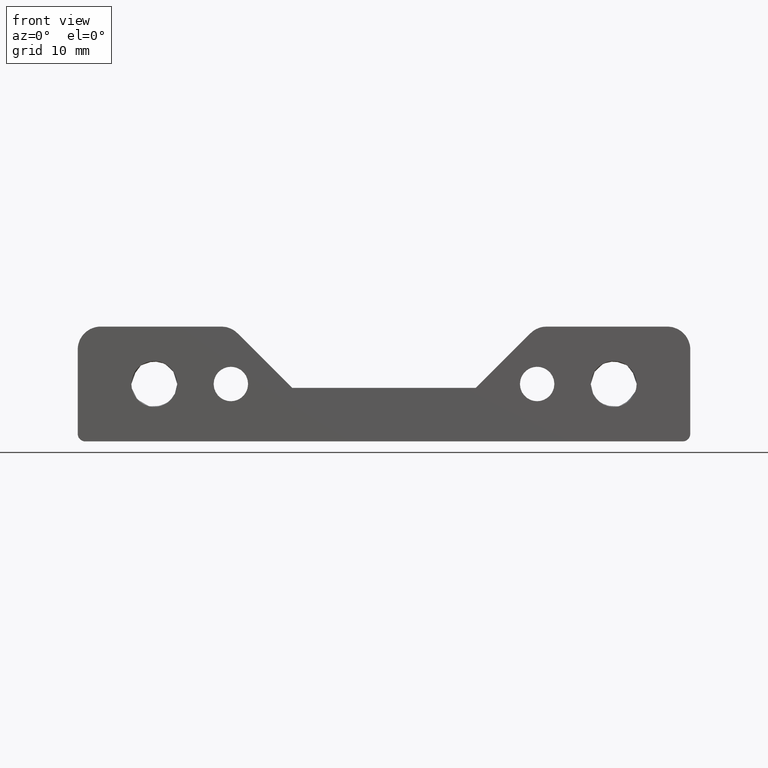
[diagram: clean part render]
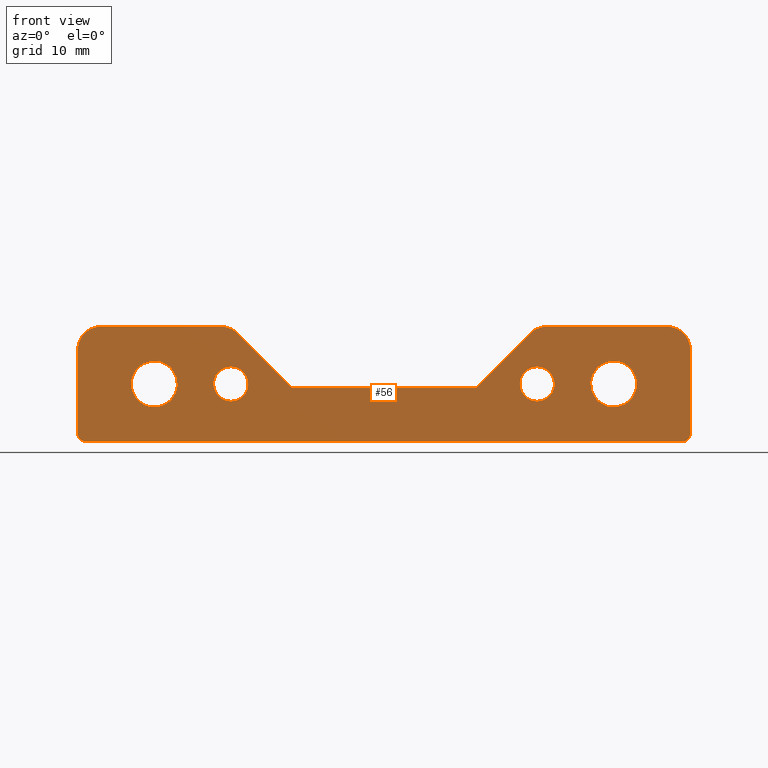
[diagram: same view with one face highlighted and labeled with its STEP entity id]
A machine part, front view. The second image highlights one B-rep face of the part: STEP entity #56.
In plain terms, the highlighted planar face has unit normal (0, -1, 0).
Its self-contained STEP definition (entity closure, byte-faithful):
#56=ADVANCED_FACE('',(#138,#89,#90,#91,#92),#1176,.T.);
#89=FACE_BOUND('',#213,.T.);
#90=FACE_BOUND('',#214,.T.);
#91=FACE_BOUND('',#215,.T.);
#92=FACE_BOUND('',#216,.T.);
#138=FACE_OUTER_BOUND('',#212,.T.);
#212=EDGE_LOOP('',(#465,#466,#467,#468,#469,#470,#471,#472,#473,#474,#475,
#476,#477,#478));
#213=EDGE_LOOP('',(#479,#480));
#214=EDGE_LOOP('',(#481,#482));
#215=EDGE_LOOP('',(#483,#484));
#216=EDGE_LOOP('',(#485,#486));
#465=ORIENTED_EDGE('',*,*,#728,.F.);
#466=ORIENTED_EDGE('',*,*,#700,.T.);
#467=ORIENTED_EDGE('',*,*,#701,.F.);
#468=ORIENTED_EDGE('',*,*,#687,.F.);
#469=ORIENTED_EDGE('',*,*,#688,.F.);
#470=ORIENTED_EDGE('',*,*,#660,.F.);
#471=ORIENTED_EDGE('',*,*,#649,.T.);
#472=ORIENTED_EDGE('',*,*,#691,.F.);
#473=ORIENTED_EDGE('',*,*,#696,.F.);
#474=ORIENTED_EDGE('',*,*,#704,.F.);
#475=ORIENTED_EDGE('',*,*,#706,.F.);
#476=ORIENTED_EDGE('',*,*,#622,.F.);
#477=ORIENTED_EDGE('',*,*,#726,.F.);
#478=ORIENTED_EDGE('',*,*,#727,.T.);
#479=ORIENTED_EDGE('',*,*,#789,.F.);
#480=ORIENTED_EDGE('',*,*,#756,.F.);
#481=ORIENTED_EDGE('',*,*,#786,.F.);
#482=ORIENTED_EDGE('',*,*,#754,.F.);
#483=ORIENTED_EDGE('',*,*,#777,.F.);
#484=ORIENTED_EDGE('',*,*,#746,.F.);
#485=ORIENTED_EDGE('',*,*,#772,.F.);
#486=ORIENTED_EDGE('',*,*,#743,.F.);
#622=EDGE_CURVE('',#999,#1000,#915,.T.);
#649=EDGE_CURVE('',#1045,#1044,#932,.T.);
#660=EDGE_CURVE('',#1045,#1052,#942,.T.);
#687=EDGE_CURVE('',#1068,#1065,#957,.T.);
#688=EDGE_CURVE('',#1052,#1068,#828,.T.);
#691=EDGE_CURVE('',#1069,#1044,#959,.T.);
#696=EDGE_CURVE('',#1070,#1069,#833,.T.);
#700=EDGE_CURVE('',#1071,#1074,#964,.T.);
#701=EDGE_CURVE('',#1065,#1074,#834,.T.);
#704=EDGE_CURVE('',#1076,#1070,#966,.T.);
#706=EDGE_CURVE('',#1000,#1076,#837,.T.);
#726=EDGE_CURVE('',#1086,#999,#847,.T.);
#727=EDGE_CURVE('',#1086,#1087,#977,.T.);
#728=EDGE_CURVE('',#1071,#1087,#848,.T.);
#743=EDGE_CURVE('',#1027,#1093,#859,.T.);
#746=EDGE_CURVE('',#1032,#1097,#861,.T.);
#754=EDGE_CURVE('',#1040,#1103,#867,.T.);
#756=EDGE_CURVE('',#1041,#1105,#869,.T.);
#772=EDGE_CURVE('',#1093,#1027,#883,.T.);
#777=EDGE_CURVE('',#1097,#1032,#886,.T.);
#786=EDGE_CURVE('',#1103,#1040,#895,.T.);
#789=EDGE_CURVE('',#1105,#1041,#898,.T.);
#828=(
BOUNDED_CURVE()
B_SPLINE_CURVE(2,(#1924,#1925,#1926),.UNSPECIFIED.,.F.,.F.)
B_SPLINE_CURVE_WITH_KNOTS((3,3),(-0.392699081698727,0.392699081698723),
 .UNSPECIFIED.)
CURVE()
GEOMETRIC_REPRESENTATION_ITEM()
RATIONAL_B_SPLINE_CURVE((1.,0.923879532511287,1.))
REPRESENTATION_ITEM('')
);
#833=(
BOUNDED_CURVE()
B_SPLINE_CURVE(2,(#1944,#1945,#1946),.UNSPECIFIED.,.F.,.F.)
B_SPLINE_CURVE_WITH_KNOTS((3,3),(-0.392699081698724,0.392699081698725),
 .UNSPECIFIED.)
CURVE()
GEOMETRIC_REPRESENTATION_ITEM()
RATIONAL_B_SPLINE_CURVE((1.,0.923879532511287,1.))
REPRESENTATION_ITEM('')
);
#834=(
BOUNDED_CURVE()
B_SPLINE_CURVE(2,(#1955,#1956,#1957),.UNSPECIFIED.,.F.,.F.)
B_SPLINE_CURVE_WITH_KNOTS((3,3),(-0.785398163397446,0.785398163397451),
 .UNSPECIFIED.)
CURVE()
GEOMETRIC_REPRESENTATION_ITEM()
RATIONAL_B_SPLINE_CURVE((1.,0.707106781186548,1.))
REPRESENTATION_ITEM('')
);
#837=(
BOUNDED_CURVE()
B_SPLINE_CURVE(2,(#1968,#1969,#1970),.UNSPECIFIED.,.F.,.F.)
B_SPLINE_CURVE_WITH_KNOTS((3,3),(-0.785398163397449,0.785398163397448),
 .UNSPECIFIED.)
CURVE()
GEOMETRIC_REPRESENTATION_ITEM()
RATIONAL_B_SPLINE_CURVE((1.,0.707106781186548,1.))
REPRESENTATION_ITEM('')
);
#847=(
BOUNDED_CURVE()
B_SPLINE_CURVE(2,(#2016,#2017,#2018),.UNSPECIFIED.,.F.,.F.)
B_SPLINE_CURVE_WITH_KNOTS((3,3),(-0.785398163397448,0.785398163397449),
 .UNSPECIFIED.)
CURVE()
GEOMETRIC_REPRESENTATION_ITEM()
RATIONAL_B_SPLINE_CURVE((1.,0.707106781186548,1.))
REPRESENTATION_ITEM('')
);
#848=(
BOUNDED_CURVE()
B_SPLINE_CURVE(2,(#2021,#2022,#2023),.UNSPECIFIED.,.F.,.F.)
B_SPLINE_CURVE_WITH_KNOTS((3,3),(-0.78539816339745,0.785398163397447),
 .UNSPECIFIED.)
CURVE()
GEOMETRIC_REPRESENTATION_ITEM()
RATIONAL_B_SPLINE_CURVE((1.,0.707106781186548,1.))
REPRESENTATION_ITEM('')
);
#859=(
BOUNDED_CURVE()
B_SPLINE_CURVE(2,(#2072,#2073,#2074,#2075,#2076),.UNSPECIFIED.,.F.,.F.)
B_SPLINE_CURVE_WITH_KNOTS((3,2,3),(-3.14159265358979,-1.5707963267949,-1.04636054940259E-15),
 .UNSPECIFIED.)
CURVE()
GEOMETRIC_REPRESENTATION_ITEM()
RATIONAL_B_SPLINE_CURVE((1.,0.707106781186548,1.,0.707106781186548,1.))
REPRESENTATION_ITEM('')
);
#861=(
BOUNDED_CURVE()
B_SPLINE_CURVE(2,(#2092,#2093,#2094,#2095,#2096),.UNSPECIFIED.,.F.,.F.)
B_SPLINE_CURVE_WITH_KNOTS((3,2,3),(-3.14159265358979,-1.5707963267949,0.),
 .UNSPECIFIED.)
CURVE()
GEOMETRIC_REPRESENTATION_ITEM()
RATIONAL_B_SPLINE_CURVE((1.,0.707106781186548,1.,0.707106781186548,1.))
REPRESENTATION_ITEM('')
);
#867=(
BOUNDED_CURVE()
B_SPLINE_CURVE(2,(#2142,#2143,#2144,#2145,#2146),.UNSPECIFIED.,.F.,.F.)
B_SPLINE_CURVE_WITH_KNOTS((3,2,3),(-3.14159265358979,-1.5707963267949,0.),
 .UNSPECIFIED.)
CURVE()
GEOMETRIC_REPRESENTATION_ITEM()
RATIONAL_B_SPLINE_CURVE((1.,0.707106781186548,1.,0.707106781186548,1.))
REPRESENTATION_ITEM('')
);
#869=(
BOUNDED_CURVE()
B_SPLINE_CURVE(2,(#2152,#2153,#2154,#2155,#2156),.UNSPECIFIED.,.F.,.F.)
B_SPLINE_CURVE_WITH_KNOTS((3,2,3),(-3.14159265358979,-1.5707963267949,0.),
 .UNSPECIFIED.)
CURVE()
GEOMETRIC_REPRESENTATION_ITEM()
RATIONAL_B_SPLINE_CURVE((1.,0.707106781186548,1.,0.707106781186548,1.))
REPRESENTATION_ITEM('')
);
#883=(
BOUNDED_CURVE()
B_SPLINE_CURVE(2,(#2232,#2233,#2234,#2235,#2236),.UNSPECIFIED.,.F.,.F.)
B_SPLINE_CURVE_WITH_KNOTS((3,2,3),(-1.04636054940259E-15,1.5707963267949,
3.1415926535898),.UNSPECIFIED.)
CURVE()
GEOMETRIC_REPRESENTATION_ITEM()
RATIONAL_B_SPLINE_CURVE((1.,0.707106781186548,1.,0.707106781186548,1.))
REPRESENTATION_ITEM('')
);
#886=(
BOUNDED_CURVE()
B_SPLINE_CURVE(2,(#2266,#2267,#2268,#2269,#2270),.UNSPECIFIED.,.F.,.F.)
B_SPLINE_CURVE_WITH_KNOTS((3,2,3),(0.,1.57079632679491,3.1415926535898),
 .UNSPECIFIED.)
CURVE()
GEOMETRIC_REPRESENTATION_ITEM()
RATIONAL_B_SPLINE_CURVE((1.,0.707106781186548,1.,0.707106781186548,1.))
REPRESENTATION_ITEM('')
);
#895=(
BOUNDED_CURVE()
B_SPLINE_CURVE(2,(#2302,#2303,#2304,#2305,#2306),.UNSPECIFIED.,.F.,.F.)
B_SPLINE_CURVE_WITH_KNOTS((3,2,3),(0.,1.57079632679491,3.1415926535898),
 .UNSPECIFIED.)
CURVE()
GEOMETRIC_REPRESENTATION_ITEM()
RATIONAL_B_SPLINE_CURVE((1.,0.707106781186548,1.,0.707106781186548,1.))
REPRESENTATION_ITEM('')
);
#898=(
BOUNDED_CURVE()
B_SPLINE_CURVE(2,(#2314,#2315,#2316,#2317,#2318),.UNSPECIFIED.,.F.,.F.)
B_SPLINE_CURVE_WITH_KNOTS((3,2,3),(0.,1.57079632679491,3.1415926535898),
 .UNSPECIFIED.)
CURVE()
GEOMETRIC_REPRESENTATION_ITEM()
RATIONAL_B_SPLINE_CURVE((1.,0.707106781186548,1.,0.707106781186548,1.))
REPRESENTATION_ITEM('')
);
#915=B_SPLINE_CURVE_WITH_KNOTS('',1,(#1749,#1750),.UNSPECIFIED.,.F.,.F.,
(2,2),(0.1,1.2),.UNSPECIFIED.);
#932=B_SPLINE_CURVE_WITH_KNOTS('',1,(#1835,#1836),.UNSPECIFIED.,.F.,.F.,
(2,2),(-3.2,-0.800000000000001),.UNSPECIFIED.);
#942=B_SPLINE_CURVE_WITH_KNOTS('',1,(#1858,#1859),.UNSPECIFIED.,.F.,.F.,
(2,2),(1.8031222920257,2.81022907321224),.UNSPECIFIED.);
#957=B_SPLINE_CURVE_WITH_KNOTS('',1,(#1922,#1923),.UNSPECIFIED.,.F.,.F.,
(2,2),(6.12426406871193,7.7),.UNSPECIFIED.);
#959=B_SPLINE_CURVE_WITH_KNOTS('',1,(#1932,#1933),.UNSPECIFIED.,.F.,.F.,
(2,2),(0.0181980515339471,1.02530483272049),.UNSPECIFIED.);
#964=B_SPLINE_CURVE_WITH_KNOTS('',1,(#1953,#1954),.UNSPECIFIED.,.F.,.F.,
(2,2),(0.1,1.2),.UNSPECIFIED.);
#966=B_SPLINE_CURVE_WITH_KNOTS('',1,(#1963,#1964),.UNSPECIFIED.,.F.,.F.,
(2,2),(0.3,1.87573593128807),.UNSPECIFIED.);
#977=B_SPLINE_CURVE_WITH_KNOTS('',1,(#2019,#2020),.UNSPECIFIED.,.F.,.F.,
(2,2),(0.0999999999999999,7.9),.UNSPECIFIED.);
#999=VERTEX_POINT('',#1621);
#1000=VERTEX_POINT('',#1622);
#1027=VERTEX_POINT('',#1649);
#1032=VERTEX_POINT('',#1654);
#1040=VERTEX_POINT('',#1662);
#1041=VERTEX_POINT('',#1663);
#1044=VERTEX_POINT('',#1666);
#1045=VERTEX_POINT('',#1667);
#1052=VERTEX_POINT('',#1674);
#1065=VERTEX_POINT('',#1687);
#1068=VERTEX_POINT('',#1690);
#1069=VERTEX_POINT('',#1691);
#1070=VERTEX_POINT('',#1692);
#1071=VERTEX_POINT('',#1693);
#1074=VERTEX_POINT('',#1696);
#1076=VERTEX_POINT('',#1698);
#1086=VERTEX_POINT('',#1708);
#1087=VERTEX_POINT('',#1709);
#1093=VERTEX_POINT('',#1715);
#1097=VERTEX_POINT('',#1719);
#1103=VERTEX_POINT('',#1725);
#1105=VERTEX_POINT('',#1727);
#1176=PLANE('',#1218);
#1218=AXIS2_PLACEMENT_3D('',#1440,#1243,$);
#1243=DIRECTION('',(0.,-1.,0.));
#1440=CARTESIAN_POINT('',(-40.0099999881972,-24.9999999973046,-0.01));
#1621=CARTESIAN_POINT('',(-39.9999999881972,-24.9999999973046,1.));
#1622=CARTESIAN_POINT('',(-39.9999999881972,-24.9999999973046,12.));
#1649=CARTESIAN_POINT('',(27.0000000118028,-24.9999999973046,7.49999999999998));
#1654=CARTESIAN_POINT('',(-32.9999999881972,-24.9999999973046,7.49999999999999));
#1662=CARTESIAN_POINT('',(17.7500000118028,-24.9999999973046,7.5));
#1663=CARTESIAN_POINT('',(-22.2499999881972,-24.9999999973046,7.5));
#1666=CARTESIAN_POINT('',(-11.9999999881972,-24.9999999973046,7.));
#1667=CARTESIAN_POINT('',(12.0000000118028,-24.9999999973046,7.));
#1674=CARTESIAN_POINT('',(19.1213203553624,-24.9999999973046,14.1213203435596));
#1687=CARTESIAN_POINT('',(37.0000000118028,-24.9999999973046,15.));
#1690=CARTESIAN_POINT('',(21.2426406989221,-24.9999999973046,15.));
#1691=CARTESIAN_POINT('',(-19.1213203317568,-24.9999999973046,14.1213203435596));
#1692=CARTESIAN_POINT('',(-21.2426406753165,-24.9999999973046,15.));
#1693=CARTESIAN_POINT('',(40.0000000118028,-24.9999999973046,1.));
#1696=CARTESIAN_POINT('',(40.0000000118028,-24.9999999973046,12.));
#1698=CARTESIAN_POINT('',(-36.9999999881972,-24.9999999973046,15.));
#1708=CARTESIAN_POINT('',(-38.9999999881972,-24.9999999973046,0.));
#1709=CARTESIAN_POINT('',(39.0000000118028,-24.9999999973046,6.93889390390723E-17));
#1715=CARTESIAN_POINT('',(33.0000000118028,-24.9999999973046,7.49999999999998));
#1719=CARTESIAN_POINT('',(-26.9999999881972,-24.9999999973046,7.49999999999999));
#1725=CARTESIAN_POINT('',(22.2500000118028,-24.9999999973046,7.5));
#1727=CARTESIAN_POINT('',(-17.7499999881972,-24.9999999973046,7.5));
#1749=CARTESIAN_POINT('',(-39.9999999881972,-24.9999999973046,1.));
#1750=CARTESIAN_POINT('',(-39.9999999881972,-24.9999999973046,12.));
#1835=CARTESIAN_POINT('',(12.0000000118028,-24.9999999973046,7.));
#1836=CARTESIAN_POINT('',(-11.9999999881972,-24.9999999973046,7.));
#1858=CARTESIAN_POINT('',(12.0000000118028,-24.9999999973046,7.));
#1859=CARTESIAN_POINT('',(19.1213203553624,-24.9999999973046,14.1213203435596));
#1922=CARTESIAN_POINT('',(21.2426406989221,-24.9999999973046,15.));
#1923=CARTESIAN_POINT('',(37.0000000118028,-24.9999999973046,15.));
#1924=CARTESIAN_POINT('',(19.1213203553624,-24.9999999973046,14.1213203435596));
#1925=CARTESIAN_POINT('',(20.0000000118029,-24.9999999973046,15.));
#1926=CARTESIAN_POINT('',(21.2426406989221,-24.9999999973046,15.));
#1932=CARTESIAN_POINT('',(-19.1213203317568,-24.9999999973046,14.1213203435596));
#1933=CARTESIAN_POINT('',(-11.9999999881972,-24.9999999973046,7.));
#1944=CARTESIAN_POINT('',(-21.2426406753165,-24.9999999973046,15.));
#1945=CARTESIAN_POINT('',(-19.9999999881972,-24.9999999973046,15.));
#1946=CARTESIAN_POINT('',(-19.1213203317568,-24.9999999973046,14.1213203435596));
#1953=CARTESIAN_POINT('',(40.0000000118028,-24.9999999973046,1.));
#1954=CARTESIAN_POINT('',(40.0000000118028,-24.9999999973046,12.));
#1955=CARTESIAN_POINT('',(37.0000000118028,-24.9999999973046,15.));
#1956=CARTESIAN_POINT('',(40.0000000118028,-24.9999999973046,15.));
#1957=CARTESIAN_POINT('',(40.0000000118028,-24.9999999973046,12.));
#1963=CARTESIAN_POINT('',(-36.9999999881972,-24.9999999973046,15.));
#1964=CARTESIAN_POINT('',(-21.2426406753165,-24.9999999973046,15.));
#1968=CARTESIAN_POINT('',(-39.9999999881972,-24.9999999973046,12.));
#1969=CARTESIAN_POINT('',(-39.9999999881972,-24.9999999973046,15.));
#1970=CARTESIAN_POINT('',(-36.9999999881972,-24.9999999973046,15.));
#2016=CARTESIAN_POINT('',(-38.9999999881972,-24.9999999973046,0.));
#2017=CARTESIAN_POINT('',(-39.9999999881972,-24.9999999973046,-6.93889390390723E-16));
#2018=CARTESIAN_POINT('',(-39.9999999881972,-24.9999999973046,1.));
#2019=CARTESIAN_POINT('',(-38.9999999881972,-24.9999999973046,0.));
#2020=CARTESIAN_POINT('',(39.0000000118028,-24.9999999973046,6.93889390390723E-17));
#2021=CARTESIAN_POINT('',(40.0000000118028,-24.9999999973046,1.));
#2022=CARTESIAN_POINT('',(40.0000000118028,-24.9999999973046,-1.7347234759768E-15));
#2023=CARTESIAN_POINT('',(39.0000000118028,-24.9999999973046,6.93889390390723E-17));
#2072=CARTESIAN_POINT('',(27.0000000118028,-24.9999999973046,7.49999999999998));
#2073=CARTESIAN_POINT('',(27.0000000118028,-24.9999999973046,4.49999999999999));
#2074=CARTESIAN_POINT('',(30.0000000118028,-24.9999999973046,4.49999999999998));
#2075=CARTESIAN_POINT('',(33.0000000118028,-24.9999999973046,4.49999999999999));
#2076=CARTESIAN_POINT('',(33.0000000118028,-24.9999999973046,7.49999999999998));
#2092=CARTESIAN_POINT('',(-32.9999999881972,-24.9999999973046,7.49999999999999));
#2093=CARTESIAN_POINT('',(-32.9999999881972,-24.9999999973046,4.49999999999999));
#2094=CARTESIAN_POINT('',(-29.9999999881972,-24.9999999973046,4.49999999999999));
#2095=CARTESIAN_POINT('',(-26.9999999881972,-24.9999999973046,4.49999999999999));
#2096=CARTESIAN_POINT('',(-26.9999999881972,-24.9999999973046,7.49999999999999));
#2142=CARTESIAN_POINT('',(17.7500000118028,-24.9999999973046,7.5));
#2143=CARTESIAN_POINT('',(17.7500000118029,-24.9999999973046,5.25));
#2144=CARTESIAN_POINT('',(20.0000000118028,-24.9999999973046,5.25));
#2145=CARTESIAN_POINT('',(22.2500000118028,-24.9999999973046,5.25));
#2146=CARTESIAN_POINT('',(22.2500000118028,-24.9999999973046,7.5));
#2152=CARTESIAN_POINT('',(-22.2499999881972,-24.9999999973046,7.5));
#2153=CARTESIAN_POINT('',(-22.2499999881972,-24.9999999973046,5.25));
#2154=CARTESIAN_POINT('',(-19.9999999881972,-24.9999999973046,5.25));
#2155=CARTESIAN_POINT('',(-17.7499999881972,-24.9999999973046,5.25));
#2156=CARTESIAN_POINT('',(-17.7499999881972,-24.9999999973046,7.5));
#2232=CARTESIAN_POINT('',(33.0000000118028,-24.9999999973046,7.49999999999998));
#2233=CARTESIAN_POINT('',(33.0000000118028,-24.9999999973046,10.5));
#2234=CARTESIAN_POINT('',(30.0000000118028,-24.9999999973046,10.5));
#2235=CARTESIAN_POINT('',(27.0000000118028,-24.9999999973046,10.5));
#2236=CARTESIAN_POINT('',(27.0000000118028,-24.9999999973046,7.49999999999998));
#2266=CARTESIAN_POINT('',(-26.9999999881972,-24.9999999973046,7.49999999999999));
#2267=CARTESIAN_POINT('',(-26.9999999881972,-24.9999999973046,10.5));
#2268=CARTESIAN_POINT('',(-29.9999999881972,-24.9999999973046,10.5));
#2269=CARTESIAN_POINT('',(-32.9999999881972,-24.9999999973046,10.5));
#2270=CARTESIAN_POINT('',(-32.9999999881972,-24.9999999973046,7.49999999999999));
#2302=CARTESIAN_POINT('',(22.2500000118028,-24.9999999973046,7.5));
#2303=CARTESIAN_POINT('',(22.2500000118028,-24.9999999973046,9.74999999999999));
#2304=CARTESIAN_POINT('',(20.0000000118028,-24.9999999973046,9.74999999999999));
#2305=CARTESIAN_POINT('',(17.7500000118028,-24.9999999973046,9.74999999999999));
#2306=CARTESIAN_POINT('',(17.7500000118028,-24.9999999973046,7.5));
#2314=CARTESIAN_POINT('',(-17.7499999881972,-24.9999999973046,7.5));
#2315=CARTESIAN_POINT('',(-17.7499999881972,-24.9999999973046,9.75));
#2316=CARTESIAN_POINT('',(-19.9999999881972,-24.9999999973046,9.75));
#2317=CARTESIAN_POINT('',(-22.2499999881972,-24.9999999973046,9.75));
#2318=CARTESIAN_POINT('',(-22.2499999881972,-24.9999999973046,7.5));